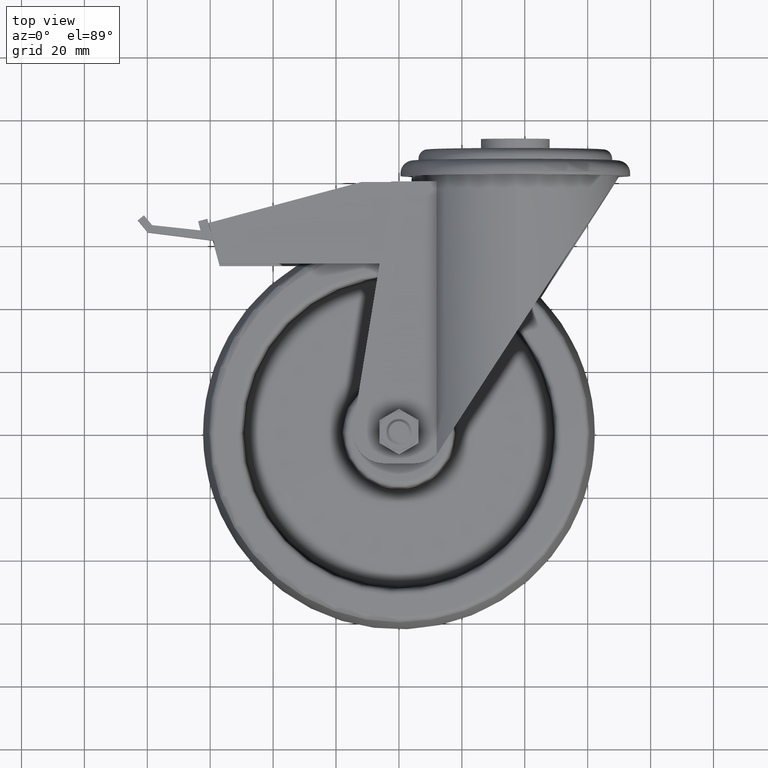
[diagram: clean part render]
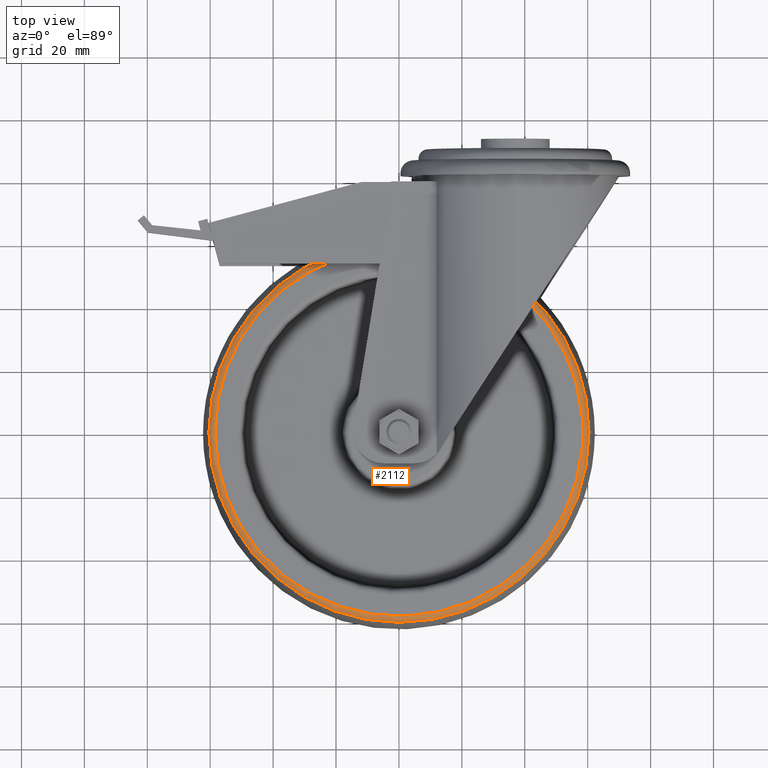
[diagram: same view with one face highlighted and labeled with its STEP entity id]
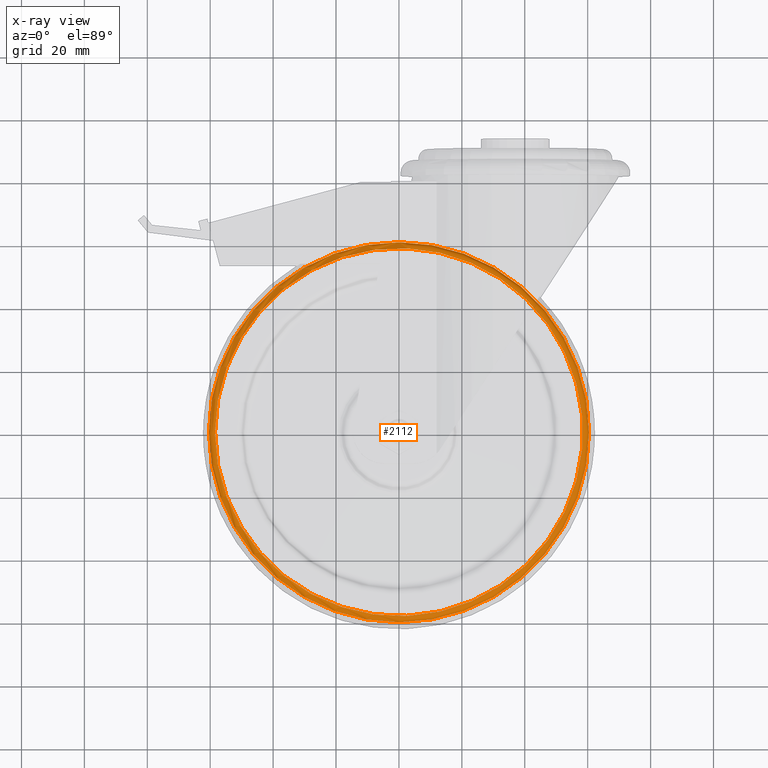
[diagram: x-ray of the same camera — body ghosted, the highlighted face saturated]
A machine part, top view. The second image highlights one B-rep face of the part: STEP entity #2112.
The next image is the same camera in x-ray: the body ghosted, the highlighted face saturated — about 0% of this face is hidden behind the body in this view.
In plain terms, the highlighted toroidal blend (fillet) surface has major radius 58.4808 mm and minor (blend) radius 2 mm.
Its self-contained STEP definition (entity closure, byte-faithful):
#147=TOROIDAL_SURFACE('',#2469,58.4807660688538,2.00000000000001);
#364=FACE_OUTER_BOUND('',#513,.T.);
#513=EDGE_LOOP('',(#1954,#1955,#1956,#1957));
#602=CIRCLE('',#2446,58.4807660688538);
#617=CIRCLE('',#2470,2.00000000000001);
#618=CIRCLE('',#2471,60.4140145339399);
#1065=VERTEX_POINT('',#3792);
#1076=VERTEX_POINT('',#3830);
#1351=EDGE_CURVE('',#1065,#1065,#602,.T.);
#1369=EDGE_CURVE('',#1065,#1076,#617,.T.);
#1370=EDGE_CURVE('',#1076,#1076,#618,.T.);
#1954=ORIENTED_EDGE('',*,*,#1351,.F.);
#1955=ORIENTED_EDGE('',*,*,#1369,.T.);
#1956=ORIENTED_EDGE('',*,*,#1370,.T.);
#1957=ORIENTED_EDGE('',*,*,#1369,.F.);
#2112=ADVANCED_FACE('',(#364),#147,.T.);
#2446=AXIS2_PLACEMENT_3D('',#3793,#3036,#3037);
#2469=AXIS2_PLACEMENT_3D('',#3829,#3085,#3086);
#2470=AXIS2_PLACEMENT_3D('',#3831,#3087,#3088);
#2471=AXIS2_PLACEMENT_3D('',#3832,#3089,#3090);
#3036=DIRECTION('center_axis',(0.,0.,1.));
#3037=DIRECTION('ref_axis',(1.,0.,0.));
#3085=DIRECTION('center_axis',(0.,0.,1.));
#3086=DIRECTION('ref_axis',(1.,0.,0.));
#3087=DIRECTION('center_axis',(1.22464679914735E-16,-1.,0.));
#3088=DIRECTION('ref_axis',(-1.,-1.22464679914735E-16,0.));
#3089=DIRECTION('center_axis',(0.,0.,1.));
#3090=DIRECTION('ref_axis',(1.,0.,0.));
#3792=CARTESIAN_POINT('',(-58.4807660688538,-7.16182829779069E-15,17.5));
#3793=CARTESIAN_POINT('Origin',(0.,0.,17.5));
#3829=CARTESIAN_POINT('Origin',(0.,0.,15.5));
#3830=CARTESIAN_POINT('',(-60.4140145339399,-7.39858295226312E-15,16.0123966942149));
#3831=CARTESIAN_POINT('Origin',(-58.4807660688538,-7.16182829779069E-15,
15.5));
#3832=CARTESIAN_POINT('Origin',(0.,0.,16.0123966942149));